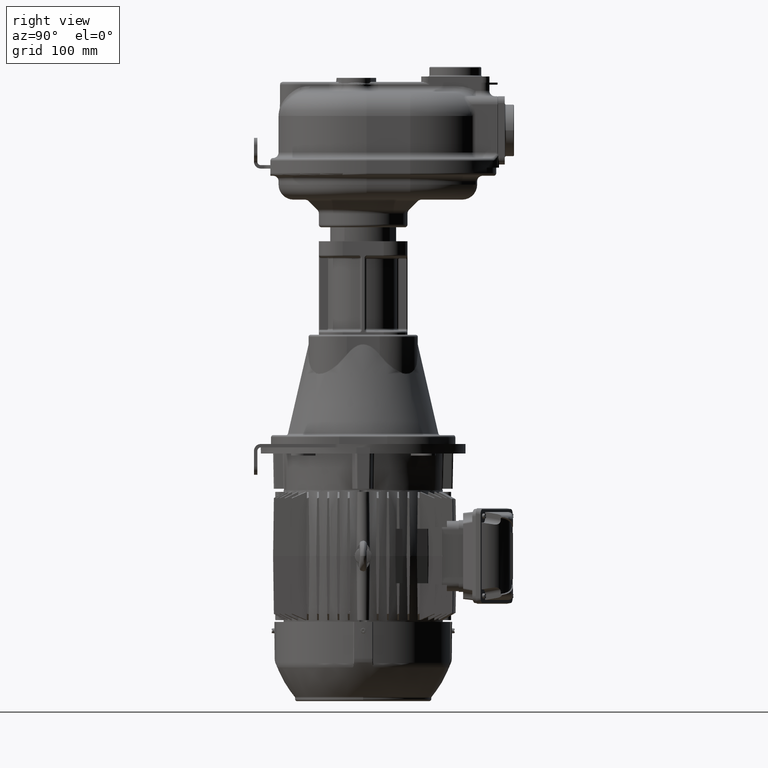
[diagram: clean part render]
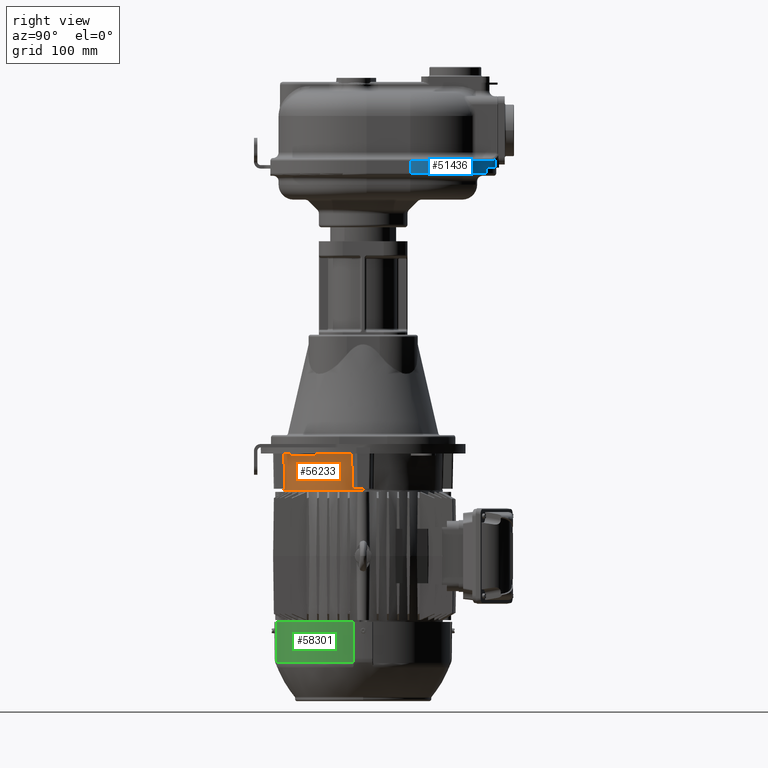
[diagram: same view with three faces highlighted in distinct colors, each labeled with its STEP entity id]
A machine part, right view with three faces highlighted in distinct colors.
Their STEP definitions:

[orange] entity #56233 — the highlighted conical surface has half-angle 1.5 deg.
#5011=CARTESIAN_POINT('',(0.E0,1.6E2,-4.465E2));
#5012=DIRECTION('',(0.E0,0.E0,1.E0));
#5013=DIRECTION('',(8.037463837847E-1,-5.949720586321E-1,0.E0));
#5014=AXIS2_PLACEMENT_3D('',#5011,#5012,#5013);
#5024=CARTESIAN_POINT('',(0.E0,1.6E2,-4.465E2));
#5025=DIRECTION('',(0.E0,0.E0,1.E0));
#5026=DIRECTION('',(1.429151650018E-1,-9.897349420994E-1,0.E0));
#5027=AXIS2_PLACEMENT_3D('',#5024,#5025,#5026);
#5041=CARTESIAN_POINT('',(0.E0,1.6E2,-4.465E2));
#5042=DIRECTION('',(0.E0,0.E0,1.E0));
#5043=DIRECTION('',(-5.949720586321E-1,-8.037463837847E-1,0.E0));
#5044=AXIS2_PLACEMENT_3D('',#5041,#5042,#5043);
#5054=CARTESIAN_POINT('',(0.E0,1.6E2,-4.465E2));
#5055=DIRECTION('',(0.E0,0.E0,1.E0));
#5056=DIRECTION('',(-9.897349420994E-1,-1.429151650018E-1,0.E0));
#5057=AXIS2_PLACEMENT_3D('',#5054,#5055,#5056);
#5674=DIRECTION('',(-2.617694830787E-2,1.136421979718E-13,-9.996573249756E-1));
#5675=VECTOR('',#5674,2.000785619261E0);
#5676=CARTESIAN_POINT('',(1.160523718431E2,1.6E2,-4.98E2));
#5677=LINE('',#5676,#5675);
#5754=CARTESIAN_POINT('',(0.E0,1.6E2,-5.000001E2));
#5755=DIRECTION('',(0.E0,0.E0,1.E0));
#5756=DIRECTION('',(-1.E0,0.E0,0.E0));
#5757=AXIS2_PLACEMENT_3D('',#5754,#5755,#5756);
#5759=DIRECTION('',(2.617694830787E-2,1.136421979718E-13,-9.996573249756E-1));
#5760=VECTOR('',#5759,2.000785619261E0);
#5761=CARTESIAN_POINT('',(-1.160523718431E2,1.6E2,-4.98E2));
#5762=LINE('',#5761,#5760);
#5763=CARTESIAN_POINT('',(-1.161959647296E2,1.432216033146E2,
-4.465000039765E2));
#5764=CARTESIAN_POINT('',(-1.160526039555E2,1.432863956242E2,
-4.522707174280E2));
#5765=CARTESIAN_POINT('',(-1.157669562510E2,1.434155669981E2,
-4.637798088148E2));
#5766=CARTESIAN_POINT('',(-1.153404119606E2,1.436082736689E2,
-4.809451041722E2));
#5767=CARTESIAN_POINT('',(-1.150572683366E2,1.437360715826E2,
-4.923256715801E2));
#5768=CARTESIAN_POINT('',(-1.149162286078E2,1.437997670006E2,
-4.980000038905E2));
#5770=CARTESIAN_POINT('',(-9.431775588780E1,9.022390169862E1,-4.495E2));
#5771=CARTESIAN_POINT('',(-9.432251243722E1,9.021566311336E1,
-4.491668559641E2));
#5772=CARTESIAN_POINT('',(-9.433202713713E1,9.019918316969E1,
-4.485004416954E2));
#5773=CARTESIAN_POINT('',(-9.434630398849E1,9.017445493777E1,
-4.475004418123E2));
#5774=CARTESIAN_POINT('',(-9.435582509341E1,9.015796390029E1,
-4.468335226820E2));
#5775=CARTESIAN_POINT('',(-9.436058644658E1,9.014971699469E1,-4.465E2));
#5777=CARTESIAN_POINT('',(-6.985028300531E1,6.563941355342E1,-4.465E2));
#5778=CARTESIAN_POINT('',(-6.984203609971E1,6.564417490659E1,
-4.468335226820E2));
#5779=CARTESIAN_POINT('',(-6.982554506223E1,6.565369601151E1,
-4.475004418123E2));
#5780=CARTESIAN_POINT('',(-6.980081683031E1,6.566797286287E1,
-4.485004416954E2));
#5781=CARTESIAN_POINT('',(-6.978433688664E1,6.567748756279E1,
-4.491668559641E2));
#5782=CARTESIAN_POINT('',(-6.977609830139E1,6.568224411220E1,-4.495E2));
#5784=CARTESIAN_POINT('',(-1.620023298465E1,4.508377149575E1,
-4.980000039781E2));
#5785=CARTESIAN_POINT('',(-1.626392840265E1,4.494273176681E1,
-4.923256716648E2));
#5786=CARTESIAN_POINT('',(-1.639172633367E1,4.465958800820E1,
-4.809451044906E2));
#5787=CARTESIAN_POINT('',(-1.658443300773E1,4.423304373300E1,
-4.637798084282E2));
#5788=CARTESIAN_POINT('',(-1.671360437035E1,4.394739608554E1,
-4.522707173121E2));
#5789=CARTESIAN_POINT('',(-1.677839667950E1,4.380403531215E1,
-4.465000038922E2));
#5791=CARTESIAN_POINT('',(1.677839668540E1,4.380403527042E1,-4.465000039765E2));
#5792=CARTESIAN_POINT('',(1.671360437581E1,4.394739604447E1,-4.522707174279E2));
#5793=CARTESIAN_POINT('',(1.658443300159E1,4.423304375140E1,-4.637798088146E2));
#5794=CARTESIAN_POINT('',(1.639172633228E1,4.465958803104E1,-4.809451041715E2));
#5795=CARTESIAN_POINT('',(1.626392841492E1,4.494273168132E1,-4.923256715798E2));
#5796=CARTESIAN_POINT('',(1.620023299687E1,4.508377141008E1,-4.980000038905E2));
#5798=CARTESIAN_POINT('',(6.977609830138E1,6.568224411220E1,-4.495E2));
#5799=CARTESIAN_POINT('',(6.978433688664E1,6.567748756278E1,-4.491668559641E2));
#5800=CARTESIAN_POINT('',(6.980081683031E1,6.566797286287E1,-4.485004416954E2));
#5801=CARTESIAN_POINT('',(6.982554506223E1,6.565369601151E1,-4.475004418123E2));
#5802=CARTESIAN_POINT('',(6.984203609971E1,6.564417490659E1,-4.468335226820E2));
#5803=CARTESIAN_POINT('',(6.985028300531E1,6.563941355342E1,-4.465E2));
#5805=CARTESIAN_POINT('',(9.436058644658E1,9.014971699469E1,-4.465E2));
#5806=CARTESIAN_POINT('',(9.435582509341E1,9.015796390029E1,-4.468335226820E2));
#5807=CARTESIAN_POINT('',(9.434630398849E1,9.017445493777E1,-4.475004418123E2));
#5808=CARTESIAN_POINT('',(9.433202713713E1,9.019918316969E1,-4.485004416954E2));
#5809=CARTESIAN_POINT('',(9.432251243721E1,9.021566311336E1,-4.491668559641E2));
#5810=CARTESIAN_POINT('',(9.431775588780E1,9.022390169861E1,-4.495E2));
#5812=CARTESIAN_POINT('',(1.149162285404E2,1.437997670103E2,-4.980000039762E2));
#5813=CARTESIAN_POINT('',(1.150572682693E2,1.437360715923E2,-4.923256716639E2));
#5814=CARTESIAN_POINT('',(1.153404119852E2,1.436082736672E2,-4.809451044857E2));
#5815=CARTESIAN_POINT('',(1.157669562364E2,1.434155669967E2,-4.637798084317E2));
#5816=CARTESIAN_POINT('',(1.160526039901E2,1.432863956187E2,-4.522707173136E2));
#5817=CARTESIAN_POINT('',(1.161959647635E2,1.432216033096E2,-4.465000038922E2));
#5819=CARTESIAN_POINT('',(0.E0,1.6E2,-5.000001E2));
#5820=DIRECTION('',(0.E0,0.E0,1.E0));
#5821=DIRECTION('',(3.704875104866E-2,-9.993134593538E-1,0.E0));
#5822=AXIS2_PLACEMENT_3D('',#5819,#5820,#5821);
#5824=CARTESIAN_POINT('',(0.E0,1.6E2,-5.000001E2));
#5825=DIRECTION('',(0.E0,0.E0,-1.E0));
#5826=DIRECTION('',(3.704874599742E-2,-9.993134595411E-1,0.E0));
#5827=AXIS2_PLACEMENT_3D('',#5824,#5825,#5826);
#5829=CARTESIAN_POINT('',(0.E0,1.6E2,-5.000001E2));
#5830=DIRECTION('',(0.E0,0.E0,1.E0));
#5831=DIRECTION('',(-9.993134593538E-1,-3.704875104888E-2,0.E0));
#5832=AXIS2_PLACEMENT_3D('',#5829,#5830,#5831);
#5889=CARTESIAN_POINT('',(0.E0,1.6E2,-5.000001E2));
#5890=DIRECTION('',(0.E0,0.E0,-1.E0));
#5891=DIRECTION('',(1.E0,0.E0,0.E0));
#5892=AXIS2_PLACEMENT_3D('',#5889,#5890,#5891);
#34270=CARTESIAN_POINT('',(0.E0,1.6E2,-4.98E2));
#34271=DIRECTION('',(0.E0,0.E0,1.E0));
#34272=DIRECTION('',(-1.E0,0.E0,0.E0));
#34273=AXIS2_PLACEMENT_3D('',#34270,#34271,#34272);
#34380=CARTESIAN_POINT('',(-1.149162286078E2,1.437997670006E2,
-4.980000038905E2));
#34498=CARTESIAN_POINT('',(0.E0,1.6E2,-4.495E2));
#34499=DIRECTION('',(0.E0,0.E0,1.E0));
#34500=DIRECTION('',(-8.039194961863E-1,-5.947381303158E-1,0.E0));
#34501=AXIS2_PLACEMENT_3D('',#34498,#34499,#34500);
#34531=CARTESIAN_POINT('',(-1.620023298465E1,4.508377149575E1,
-4.980000039781E2));
#34601=CARTESIAN_POINT('',(0.E0,1.6E2,-4.98E2));
#34602=DIRECTION('',(0.E0,0.E0,1.E0));
#34603=DIRECTION('',(-1.395939799542E-1,-9.902088268444E-1,0.E0));
#34604=AXIS2_PLACEMENT_3D('',#34601,#34602,#34603);
#34754=CARTESIAN_POINT('',(0.E0,1.6E2,-4.495E2));
#34755=DIRECTION('',(0.E0,0.E0,1.E0));
#34756=DIRECTION('',(5.947381303158E-1,-8.039194961863E-1,0.E0));
#34757=AXIS2_PLACEMENT_3D('',#34754,#34755,#34756);
#34870=CARTESIAN_POINT('',(0.E0,1.6E2,-4.98E2));
#34871=DIRECTION('',(0.E0,0.E0,1.E0));
#34872=DIRECTION('',(9.902088268444E-1,-1.395939799542E-1,0.E0));
#34873=AXIS2_PLACEMENT_3D('',#34870,#34871,#34872);
#47554=CARTESIAN_POINT('',(-6.977609830139E1,6.568224411220E1,-4.495E2));
#47556=VERTEX_POINT('',#47554);
#47570=CARTESIAN_POINT('',(9.431775588780E1,9.022390169861E1,-4.495E2));
#47571=VERTEX_POINT('',#47570);
#47572=CARTESIAN_POINT('',(6.977609830138E1,6.568224411220E1,-4.495E2));
#47573=VERTEX_POINT('',#47572);
#47574=VERTEX_POINT('',#5791);
#47575=VERTEX_POINT('',#5796);
#47576=CARTESIAN_POINT('',(6.985028300531E1,6.563941355342E1,-4.465E2));
#47577=VERTEX_POINT('',#47576);
#47578=CARTESIAN_POINT('',(-1.161958192874E2,1.432216243162E2,-4.465E2));
#47579=CARTESIAN_POINT('',(-9.436058644658E1,9.014971699469E1,-4.465E2));
#47580=VERTEX_POINT('',#47578);
#47581=VERTEX_POINT('',#47579);
#47582=CARTESIAN_POINT('',(-9.431775588780E1,9.022390169862E1,-4.495E2));
#47583=VERTEX_POINT('',#47582);
#47584=VERTEX_POINT('',#5777);
#47639=VERTEX_POINT('',#34531);
#47649=VERTEX_POINT('',#34380);
#47705=CARTESIAN_POINT('',(1.160523718431E2,1.6E2,-4.98E2));
#47706=CARTESIAN_POINT('',(1.159999973814E2,1.6E2,-5.000001E2));
#47707=VERTEX_POINT('',#47705);
#47708=VERTEX_POINT('',#47706);
#47709=CARTESIAN_POINT('',(9.436058644658E1,9.014971699469E1,-4.465E2));
#47710=CARTESIAN_POINT('',(1.161958192874E2,1.432216243161E2,-4.465E2));
#47711=VERTEX_POINT('',#47709);
#47712=VERTEX_POINT('',#47710);
#47713=VERTEX_POINT('',#5812);
#47714=VERTEX_POINT('',#5789);
#47715=CARTESIAN_POINT('',(-1.160523718431E2,1.6E2,-4.98E2));
#47716=CARTESIAN_POINT('',(-1.159999973814E2,1.6E2,-5.000001E2));
#47717=VERTEX_POINT('',#47715);
#47718=VERTEX_POINT('',#47716);
#48029=CARTESIAN_POINT('',(1.159203585606E2,1.557023454838E2,-5.000001E2));
#48031=VERTEX_POINT('',#48029);
#48032=CARTESIAN_POINT('',(-1.159203585445E2,1.557023455178E2,-5.000001E2));
#48034=VERTEX_POINT('',#48032);
#48038=CARTESIAN_POINT('',(-4.297654992559E0,4.407964121390E1,-5.000001E2));
#48039=VERTEX_POINT('',#48038);
#48040=CARTESIAN_POINT('',(4.297654992545E0,4.407964121391E1,-5.000001E2));
#48041=VERTEX_POINT('',#48040);
#56184=CARTESIAN_POINT('',(0.E0,1.6E2,-4.7325005E2));
#56185=DIRECTION('',(0.E0,0.E0,1.E0));
#56186=DIRECTION('',(-1.E0,0.E0,0.E0));
#56187=AXIS2_PLACEMENT_3D('',#56184,#56185,#56186);
#56188=CONICAL_SURFACE('',#56187,1.167004720927E2,1.5E0);
#56190=ORIENTED_EDGE('',*,*,#56189,.F.);
#56191=ORIENTED_EDGE('',*,*,#56169,.F.);
#56193=ORIENTED_EDGE('',*,*,#56192,.T.);
#56195=ORIENTED_EDGE('',*,*,#56194,.F.);
#56196=ORIENTED_EDGE('',*,*,#55338,.T.);
#56198=ORIENTED_EDGE('',*,*,#56197,.F.);
#56200=ORIENTED_EDGE('',*,*,#56199,.T.);
#56202=ORIENTED_EDGE('',*,*,#56201,.F.);
#56203=ORIENTED_EDGE('',*,*,#55330,.T.);
#56205=ORIENTED_EDGE('',*,*,#56204,.F.);
#56207=ORIENTED_EDGE('',*,*,#56206,.T.);
#56209=ORIENTED_EDGE('',*,*,#56208,.F.);
#56210=ORIENTED_EDGE('',*,*,#55314,.T.);
#56212=ORIENTED_EDGE('',*,*,#56211,.F.);
#56214=ORIENTED_EDGE('',*,*,#56213,.T.);
#56216=ORIENTED_EDGE('',*,*,#56215,.F.);
#56217=ORIENTED_EDGE('',*,*,#55306,.T.);
#56219=ORIENTED_EDGE('',*,*,#56218,.F.);
#56221=ORIENTED_EDGE('',*,*,#56220,.T.);
#56222=ORIENTED_EDGE('',*,*,#56137,.T.);
#56224=ORIENTED_EDGE('',*,*,#56223,.T.);
#56226=ORIENTED_EDGE('',*,*,#56225,.F.);
#56228=ORIENTED_EDGE('',*,*,#56227,.T.);
#56230=ORIENTED_EDGE('',*,*,#56229,.F.);
#56231=EDGE_LOOP('',(#56190,#56191,#56193,#56195,#56196,#56198,#56200,#56202,
#56203,#56205,#56207,#56209,#56210,#56212,#56214,#56216,#56217,#56219,#56221,
#56222,#56224,#56226,#56228,#56230));
#56232=FACE_OUTER_BOUND('',#56231,.F.);
#56233=ADVANCED_FACE('',(#56232),#56188,.T.);
#5015=CIRCLE('',#5014,1.174009468040E2);
#5028=CIRCLE('',#5027,1.174009468040E2);
#5045=CIRCLE('',#5044,1.174009468040E2);
#5058=CIRCLE('',#5057,1.174009468040E2);
#5758=CIRCLE('',#5757,1.159999973814E2);
#5769=B_SPLINE_CURVE_WITH_KNOTS('',3,(#5763,#5764,#5765,#5766,#5767,#5768),
.UNSPECIFIED.,.F.,.F.,(4,1,1,4),(0.E0,3.333333333333E-1,6.666666666667E-1,1.E0),
.UNSPECIFIED.);
#5776=B_SPLINE_CURVE_WITH_KNOTS('',3,(#5770,#5771,#5772,#5773,#5774,#5775),
.UNSPECIFIED.,.F.,.F.,(4,1,1,4),(0.E0,3.333333333333E-1,6.666666666667E-1,1.E0),
.UNSPECIFIED.);
#5783=B_SPLINE_CURVE_WITH_KNOTS('',3,(#5777,#5778,#5779,#5780,#5781,#5782),
.UNSPECIFIED.,.F.,.F.,(4,1,1,4),(0.E0,3.333333333333E-1,6.666666666667E-1,1.E0),
.UNSPECIFIED.);
#5790=B_SPLINE_CURVE_WITH_KNOTS('',3,(#5784,#5785,#5786,#5787,#5788,#5789),
.UNSPECIFIED.,.F.,.F.,(4,1,1,4),(0.E0,3.333333333333E-1,6.666666666667E-1,1.E0),
.UNSPECIFIED.);
#5797=B_SPLINE_CURVE_WITH_KNOTS('',3,(#5791,#5792,#5793,#5794,#5795,#5796),
.UNSPECIFIED.,.F.,.F.,(4,1,1,4),(0.E0,3.333333333333E-1,6.666666666667E-1,1.E0),
.UNSPECIFIED.);
#5804=B_SPLINE_CURVE_WITH_KNOTS('',3,(#5798,#5799,#5800,#5801,#5802,#5803),
.UNSPECIFIED.,.F.,.F.,(4,1,1,4),(0.E0,3.333333333333E-1,6.666666666667E-1,1.E0),
.UNSPECIFIED.);
#5811=B_SPLINE_CURVE_WITH_KNOTS('',3,(#5805,#5806,#5807,#5808,#5809,#5810),
.UNSPECIFIED.,.F.,.F.,(4,1,1,4),(0.E0,3.333333333333E-1,6.666666666667E-1,1.E0),
.UNSPECIFIED.);
#5818=B_SPLINE_CURVE_WITH_KNOTS('',3,(#5812,#5813,#5814,#5815,#5816,#5817),
.UNSPECIFIED.,.F.,.F.,(4,1,1,4),(0.E0,3.333333333333E-1,6.666666666667E-1,1.E0),
.UNSPECIFIED.);
#5823=CIRCLE('',#5822,1.159999973814E2);
#5828=CIRCLE('',#5827,1.159999973814E2);
#5833=CIRCLE('',#5832,1.159999973814E2);
#5893=CIRCLE('',#5892,1.159999973814E2);
#34274=CIRCLE('',#34273,1.160523718431E2);
#34502=CIRCLE('',#34501,1.173223890392E2);
#34605=CIRCLE('',#34604,1.160523718431E2);
#34758=CIRCLE('',#34757,1.173223890392E2);
#34874=CIRCLE('',#34873,1.160523718431E2);
#55306=EDGE_CURVE('',#47711,#47712,#5015,.T.);
#55314=EDGE_CURVE('',#47574,#47577,#5028,.T.);
#55330=EDGE_CURVE('',#47584,#47714,#5045,.T.);
#55338=EDGE_CURVE('',#47580,#47581,#5058,.T.);
#56137=EDGE_CURVE('',#47707,#47708,#5677,.T.);
#56169=EDGE_CURVE('',#47717,#47718,#5762,.T.);
#56189=EDGE_CURVE('',#47718,#48034,#5758,.T.);
#56192=EDGE_CURVE('',#47717,#47649,#34274,.T.);
#56194=EDGE_CURVE('',#47580,#47649,#5769,.T.);
#56197=EDGE_CURVE('',#47583,#47581,#5776,.T.);
#56199=EDGE_CURVE('',#47583,#47556,#34502,.T.);
#56201=EDGE_CURVE('',#47584,#47556,#5783,.T.);
#56204=EDGE_CURVE('',#47639,#47714,#5790,.T.);
#56206=EDGE_CURVE('',#47639,#47575,#34605,.T.);
#56208=EDGE_CURVE('',#47574,#47575,#5797,.T.);
#56211=EDGE_CURVE('',#47573,#47577,#5804,.T.);
#56213=EDGE_CURVE('',#47573,#47571,#34758,.T.);
#56215=EDGE_CURVE('',#47711,#47571,#5811,.T.);
#56218=EDGE_CURVE('',#47713,#47712,#5818,.T.);
#56220=EDGE_CURVE('',#47713,#47707,#34874,.T.);
#56223=EDGE_CURVE('',#47708,#48031,#5893,.T.);
#56225=EDGE_CURVE('',#48041,#48031,#5823,.T.);
#56227=EDGE_CURVE('',#48041,#48039,#5828,.T.);
#56229=EDGE_CURVE('',#48034,#48039,#5833,.T.);

[blue] entity #51436 — the highlighted cylindrical surface (partial cylindrical patch) has radius 152 mm, axis along (0, 0, -1).
#2018=CARTESIAN_POINT('',(9.626958107433E1,3.541461520833E2,-1.524631236524E1));
#2056=CARTESIAN_POINT('',(1.E1,2.29E2,-2.75E1));
#2057=DIRECTION('',(0.E0,0.E0,-1.E0));
#2058=DIRECTION('',(5.675630333838E-1,8.233299479165E-1,0.E0));
#2059=AXIS2_PLACEMENT_3D('',#2056,#2057,#2058);
#2280=DIRECTION('',(0.E0,0.E0,-1.E0));
#2281=VECTOR('',#2280,1.8E1);
#2282=CARTESIAN_POINT('',(1.62E2,2.29E2,-1.75E1));
#2283=LINE('',#2282,#2281);
#2292=DIRECTION('',(0.E0,0.E0,-1.E0));
#2293=VECTOR('',#2292,8.E0);
#2294=CARTESIAN_POINT('',(1.126737184481E2,3.410808080808E2,-2.75E1));
#2295=LINE('',#2294,#2293);
#2296=CARTESIAN_POINT('',(1.E1,2.29E2,-3.55E1));
#2297=DIRECTION('',(0.E0,0.E0,-1.E0));
#2298=DIRECTION('',(6.754849897899E-1,7.373737373737E-1,0.E0));
#2299=AXIS2_PLACEMENT_3D('',#2296,#2297,#2298);
#2301=CARTESIAN_POINT('',(1.E1,2.29E2,-1.75E1));
#2302=DIRECTION('',(0.E0,0.E0,1.E0));
#2303=DIRECTION('',(1.E0,0.E0,0.E0));
#2304=AXIS2_PLACEMENT_3D('',#2301,#2302,#2303);
#2306=CARTESIAN_POINT('',(1.034594594595E2,3.488721378701E2,-1.75E1));
#2307=CARTESIAN_POINT('',(1.032795796951E2,3.490123828381E2,-1.749999995520E1));
#2308=CARTESIAN_POINT('',(1.029211205563E2,3.492905578533E2,-1.749233968162E1));
#2309=CARTESIAN_POINT('',(1.023868749173E2,3.497013460475E2,-1.745823586831E1));
#2310=CARTESIAN_POINT('',(1.018577229836E2,3.501045172388E2,-1.740196043520E1));
#2311=CARTESIAN_POINT('',(1.013348916827E2,3.504992931177E2,-1.732406253917E1));
#2312=CARTESIAN_POINT('',(1.008195366841E2,3.508849754526E2,-1.722515799444E1));
#2313=CARTESIAN_POINT('',(1.003127250279E2,3.512609570829E2,-1.710592948671E1));
#2314=CARTESIAN_POINT('',(9.981542882262E1,3.516267214782E2,-1.696711041721E1));
#2315=CARTESIAN_POINT('',(9.932852707056E1,3.519818370853E2,-1.680947443834E1));
#2316=CARTESIAN_POINT('',(9.885280909494E1,3.523259506189E2,-1.663382539430E1));
#2317=CARTESIAN_POINT('',(9.838897598133E1,3.526587821302E2,-1.644098720023E1));
#2318=CARTESIAN_POINT('',(9.793764793830E1,3.529801162511E2,-1.623179766223E1));
#2319=CARTESIAN_POINT('',(9.749935470391E1,3.532898055408E2,-1.600709199430E1));
#2320=CARTESIAN_POINT('',(9.707459393587E1,3.535877270609E2,-1.576773079944E1));
#2321=CARTESIAN_POINT('',(9.666366084242E1,3.538738978532E2,-1.551447973693E1));
#2322=CARTESIAN_POINT('',(9.639937563184E1,3.540566781135E2,-1.533708893445E1));
#2323=CARTESIAN_POINT('',(9.626958107433E1,3.541461520833E2,-1.524631236524E1));
#2325=DIRECTION('',(0.E0,0.E0,-1.E0));
#2326=VECTOR('',#2325,1.225368763476E1);
#2327=CARTESIAN_POINT('',(9.626958107433E1,3.541461520833E2,-1.524631236524E1));
#2328=LINE('',#2327,#2326);
#40251=VERTEX_POINT('',#2018);
#40256=VERTEX_POINT('',#2306);
#40259=CARTESIAN_POINT('',(1.62E2,2.29E2,-1.75E1));
#40260=VERTEX_POINT('',#40259);
#40287=CARTESIAN_POINT('',(9.626958107433E1,3.541461520833E2,-2.75E1));
#40288=VERTEX_POINT('',#40287);
#40542=CARTESIAN_POINT('',(1.62E2,2.29E2,-3.55E1));
#40543=VERTEX_POINT('',#40542);
#40546=CARTESIAN_POINT('',(1.126737184481E2,3.410808080808E2,-3.55E1));
#40547=VERTEX_POINT('',#40546);
#40568=CARTESIAN_POINT('',(1.126737184481E2,3.410808080808E2,-2.75E1));
#40569=VERTEX_POINT('',#40568);
#51418=CARTESIAN_POINT('',(1.E1,2.29E2,-2.75E1));
#51419=DIRECTION('',(0.E0,0.E0,-1.E0));
#51420=DIRECTION('',(-1.E0,0.E0,0.E0));
#51421=AXIS2_PLACEMENT_3D('',#51418,#51419,#51420);
#51422=CYLINDRICAL_SURFACE('',#51421,1.52E2);
#51423=ORIENTED_EDGE('',*,*,#51243,.T.);
#51425=ORIENTED_EDGE('',*,*,#51424,.T.);
#51427=ORIENTED_EDGE('',*,*,#51426,.T.);
#51428=ORIENTED_EDGE('',*,*,#51408,.F.);
#51430=ORIENTED_EDGE('',*,*,#51429,.T.);
#51432=ORIENTED_EDGE('',*,*,#51431,.T.);
#51433=ORIENTED_EDGE('',*,*,#51227,.T.);
#51434=EDGE_LOOP('',(#51423,#51425,#51427,#51428,#51430,#51432,#51433));
#51435=FACE_OUTER_BOUND('',#51434,.F.);
#51436=ADVANCED_FACE('',(#51435),#51422,.T.);
#2060=CIRCLE('',#2059,1.52E2);
#2300=CIRCLE('',#2299,1.52E2);
#2305=CIRCLE('',#2304,1.52E2);
#2324=B_SPLINE_CURVE_WITH_KNOTS('',3,(#2306,#2307,#2308,#2309,#2310,#2311,#2312,
#2313,#2314,#2315,#2316,#2317,#2318,#2319,#2320,#2321,#2322,#2323),
.UNSPECIFIED.,.F.,.F.,(4,1,1,1,1,1,1,1,1,1,1,1,1,1,1,4),(0.E0,6.666666666667E-2,
1.333333333333E-1,2.E-1,2.666666666667E-1,3.333333333333E-1,4.E-1,
4.666666666667E-1,5.333333333333E-1,6.E-1,6.666666666667E-1,7.333333333333E-1,
8.E-1,8.666666666667E-1,9.333333333333E-1,1.E0),.UNSPECIFIED.);
#51227=EDGE_CURVE('',#40251,#40288,#2328,.T.);
#51243=EDGE_CURVE('',#40288,#40569,#2060,.T.);
#51408=EDGE_CURVE('',#40260,#40543,#2283,.T.);
#51424=EDGE_CURVE('',#40569,#40547,#2295,.T.);
#51426=EDGE_CURVE('',#40547,#40543,#2300,.T.);
#51429=EDGE_CURVE('',#40260,#40256,#2305,.T.);
#51431=EDGE_CURVE('',#40256,#40251,#2324,.T.);

[green] entity #58301 — the highlighted cylindrical surface (partial cylindrical patch) has radius 127.75 mm, axis along (0, 0, -1).
#7818=CARTESIAN_POINT('',(-2.098058413211E-14,1.6E2,-6.932001E2));
#7819=DIRECTION('',(0.E0,0.E0,1.E0));
#7820=DIRECTION('',(1.165048543689E-1,-9.931901222367E-1,0.E0));
#7821=AXIS2_PLACEMENT_3D('',#7818,#7819,#7820);
#8532=DIRECTION('',(0.E0,0.E0,1.E0));
#8533=VECTOR('',#8532,5.973225400103E1);
#8534=CARTESIAN_POINT('',(1.488349514563E1,3.311996188427E1,-7.529323540010E2));
#8535=LINE('',#8534,#8533);
#8572=CARTESIAN_POINT('',(-2.829543390989E-14,1.6E2,-7.529323540010E2));
#8573=DIRECTION('',(0.E0,0.E0,-1.E0));
#8574=DIRECTION('',(9.931901222367E-1,-1.165048543689E-1,0.E0));
#8575=AXIS2_PLACEMENT_3D('',#8572,#8573,#8574);
#8610=DIRECTION('',(0.E0,0.E0,-1.E0));
#8611=VECTOR('',#8610,5.973225400103E1);
#8612=CARTESIAN_POINT('',(1.268800381157E2,1.451165048544E2,-6.932001E2));
#8613=LINE('',#8612,#8611);
#43756=CARTESIAN_POINT('',(1.488349514563E1,3.311996188427E1,
-7.529323540010E2));
#43757=CARTESIAN_POINT('',(1.488349514563E1,3.311996188427E1,-6.932001E2));
#43758=VERTEX_POINT('',#43756);
#43759=VERTEX_POINT('',#43757);
#43774=CARTESIAN_POINT('',(1.268800381157E2,1.451165048544E2,-6.932001E2));
#43775=VERTEX_POINT('',#43774);
#43810=CARTESIAN_POINT('',(1.268800381157E2,1.451165048544E2,
-7.529323540010E2));
#43811=VERTEX_POINT('',#43810);
#58289=CARTESIAN_POINT('',(-3.689422649904E-14,1.6E2,-8.231491429497E2));
#58290=DIRECTION('',(0.E0,0.E0,-1.E0));
#58291=DIRECTION('',(-1.E0,0.E0,0.E0));
#58292=AXIS2_PLACEMENT_3D('',#58289,#58290,#58291);
#58293=CYLINDRICAL_SURFACE('',#58292,1.2775E2);
#58294=ORIENTED_EDGE('',*,*,#57691,.T.);
#58296=ORIENTED_EDGE('',*,*,#58295,.T.);
#58297=ORIENTED_EDGE('',*,*,#58280,.T.);
#58298=ORIENTED_EDGE('',*,*,#58152,.T.);
#58299=EDGE_LOOP('',(#58294,#58296,#58297,#58298));
#58300=FACE_OUTER_BOUND('',#58299,.F.);
#58301=ADVANCED_FACE('',(#58300),#58293,.T.);
#7822=CIRCLE('',#7821,1.2775E2);
#8576=CIRCLE('',#8575,1.2775E2);
#57691=EDGE_CURVE('',#43759,#43775,#7822,.T.);
#58152=EDGE_CURVE('',#43758,#43759,#8535,.T.);
#58280=EDGE_CURVE('',#43811,#43758,#8576,.T.);
#58295=EDGE_CURVE('',#43775,#43811,#8613,.T.);